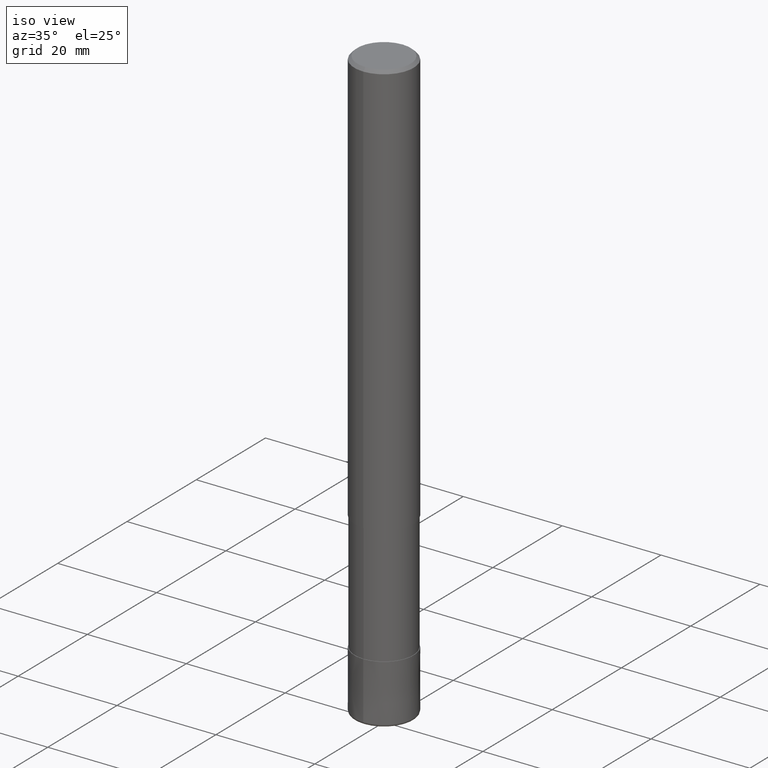
[diagram: clean part render]
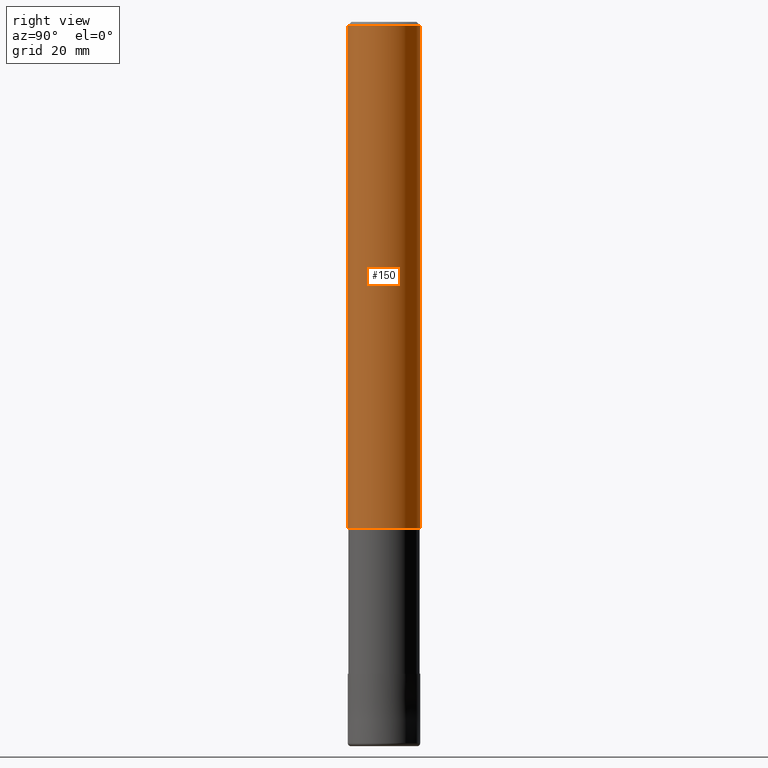
[diagram: tour spotlight — one face highlighted and labeled with its STEP entity id]
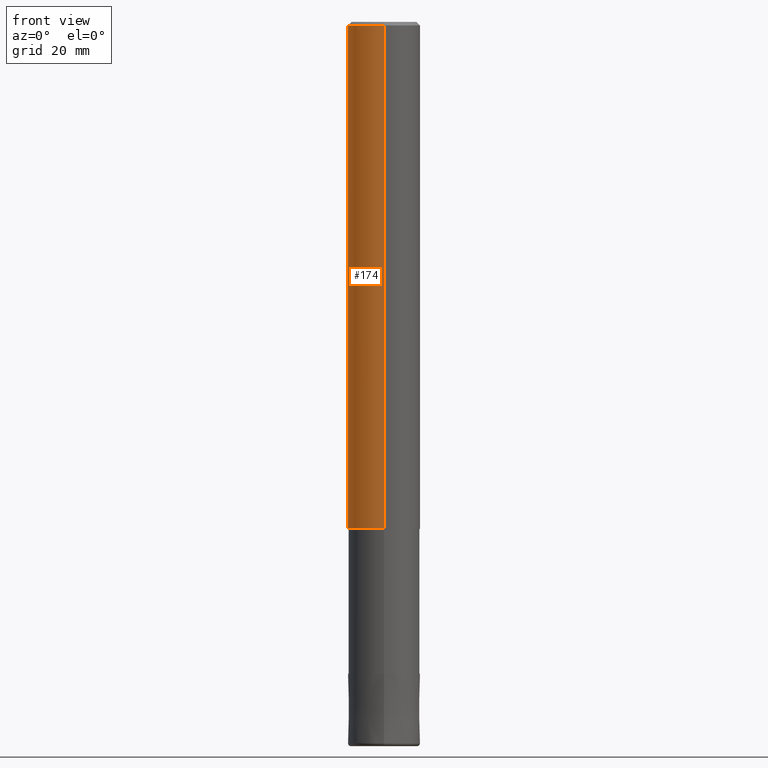
[diagram: tour spotlight — one face highlighted and labeled with its STEP entity id]
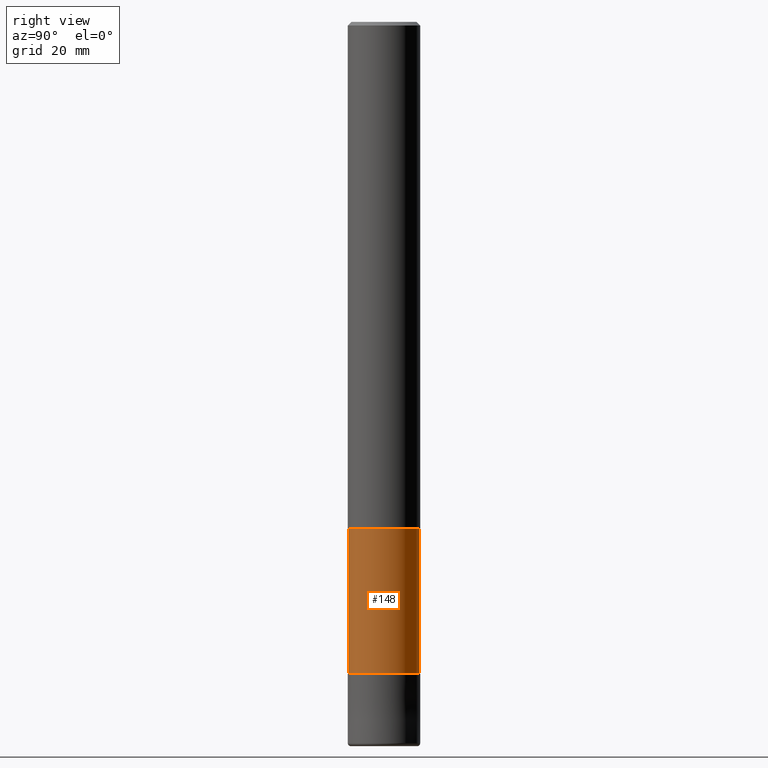
[diagram: tour spotlight — one face highlighted and labeled with its STEP entity id]
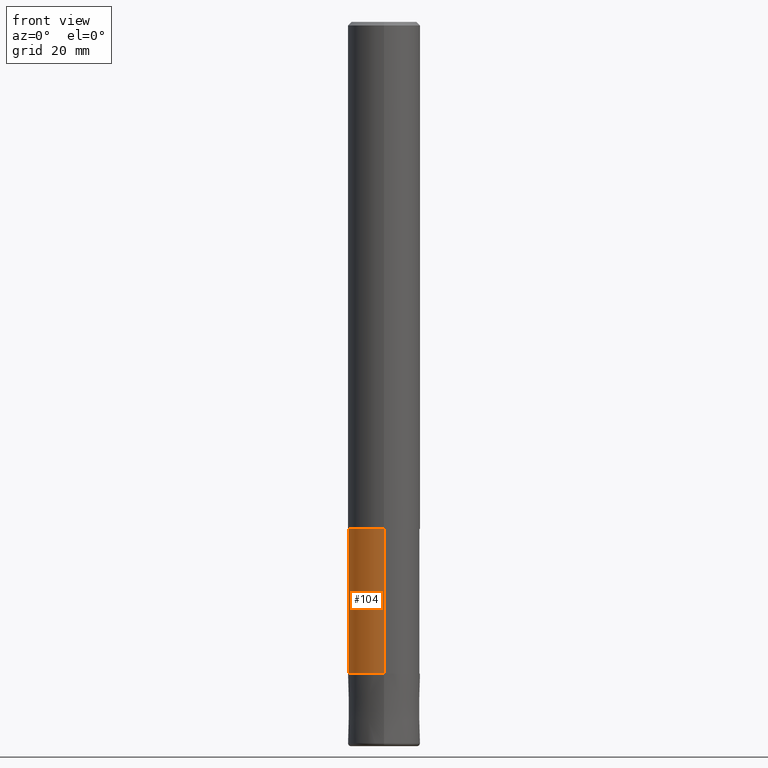
[diagram: tour spotlight — one face highlighted and labeled with its STEP entity id]
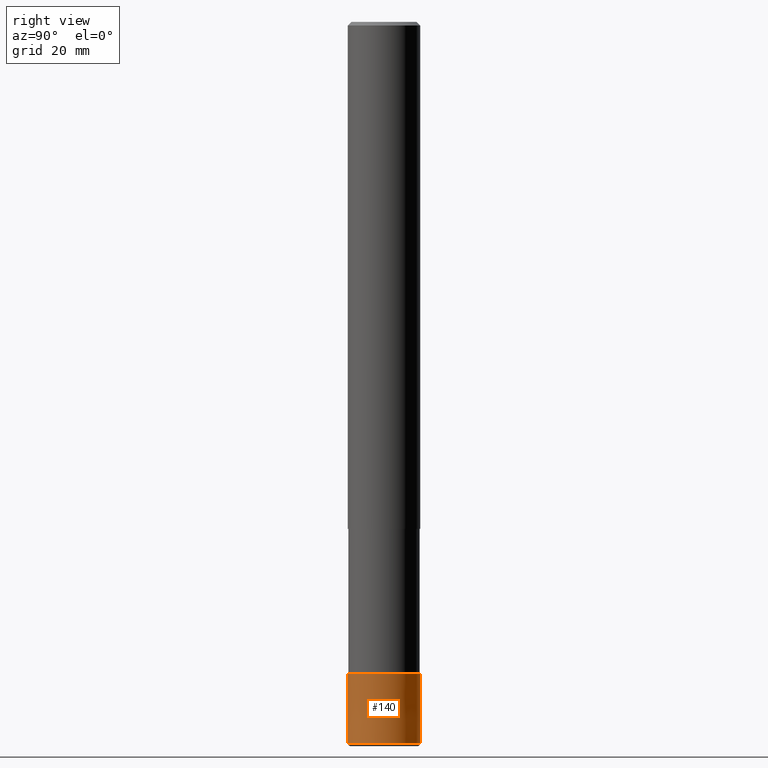
[diagram: tour spotlight — one face highlighted and labeled with its STEP entity id]
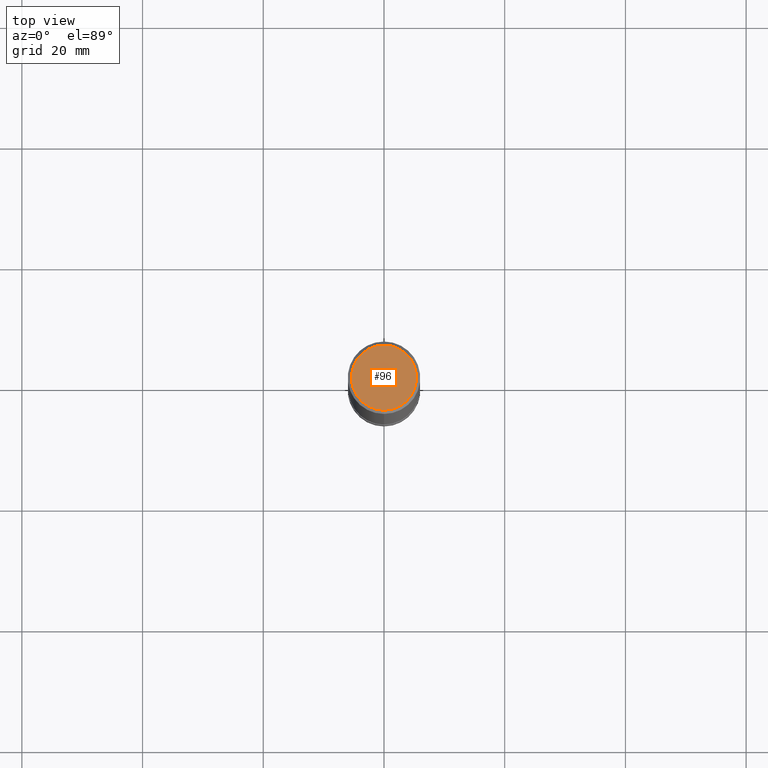
[diagram: tour spotlight — one face highlighted and labeled with its STEP entity id]
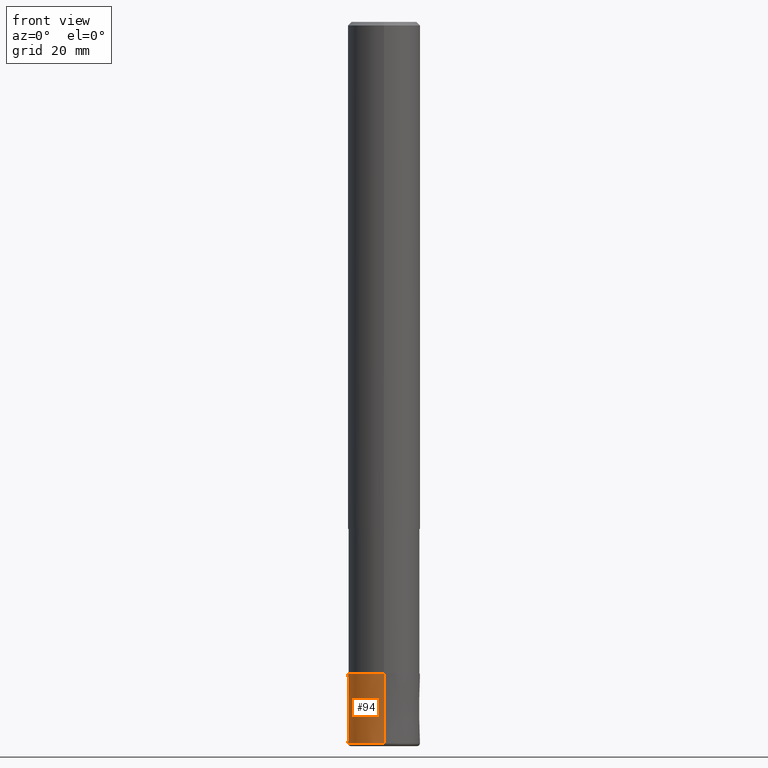
[diagram: tour spotlight — one face highlighted and labeled with its STEP entity id]
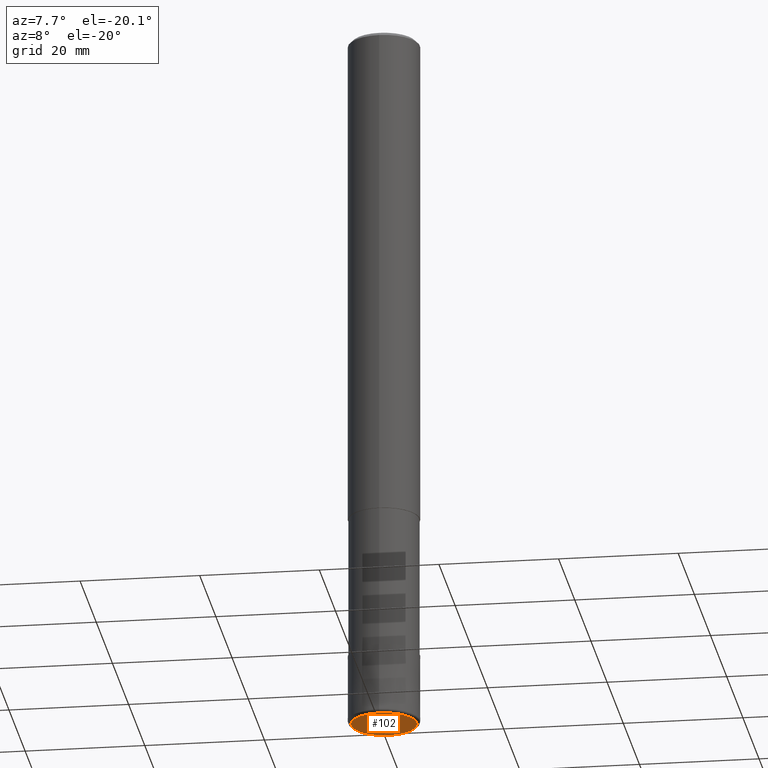
[diagram: tour spotlight — one face highlighted and labeled with its STEP entity id]
A machine part: a face-by-face anatomy tour. The part has 15 B-rep faces; the first image is the clean iso view, then the 8 largest visible faces are spotlighted one at a time (largest first), each with its STEP entity span.

Face 1 — right view, entity #150. In plain terms, the highlighted cylindrical surface (edge-blend (fillet) strip) has radius 6 mm, axis along (-0, -0, 1).
Definition (entity closure, byte-faithful):
#132=EDGE_CURVE('',#168,#202,#279,.T.);
#134=EDGE_CURVE('',#200,#204,#281,.T.);
#150=ADVANCED_FACE('',(#300),#301,.T.);
#156=EDGE_CURVE('',#168,#200,#307,.T.);
#158=EDGE_CURVE('',#204,#202,#309,.T.);
#168=VERTEX_POINT('',#319);
#200=VERTEX_POINT('',#353);
#202=VERTEX_POINT('',#355);
#204=VERTEX_POINT('',#357);
#279=CIRCLE('',#429,6.0);
#281=CIRCLE('',#432,6.0);
#300=FACE_OUTER_BOUND('',#454,.T.);
#301=CYLINDRICAL_SURFACE('',#455,6.0);
#307=LINE('',#464,#465);
#309=LINE('',#468,#469);
#319=CARTESIAN_POINT('',(0.0,6.0,-0.599999999999994));
#353=CARTESIAN_POINT('',(0.0,6.0,-84.0));
#355=CARTESIAN_POINT('',(7.34763812293426E-016,-6.0,-0.599999999999994));
#357=CARTESIAN_POINT('',(7.34763812293426E-016,-6.0,-84.0));
#429=AXIS2_PLACEMENT_3D('',#621,#622,#623);
#432=AXIS2_PLACEMENT_3D('',#624,#625,#626);
#454=EDGE_LOOP('',(#659,#660,#661,#662));
#455=AXIS2_PLACEMENT_3D('',#663,#664,#665);
#464=CARTESIAN_POINT('',(-7.34763812293426E-016,6.0,-42.3));
#465=VECTOR('',#672,1.0);
#468=CARTESIAN_POINT('',(7.34763812293426E-016,-6.0,-42.3));
#469=VECTOR('',#673,1.0);
#621=CARTESIAN_POINT('',(0.0,0.0,-0.599999999999994));
#622=DIRECTION('',(0.0,0.0,-1.0));
#623=DIRECTION('',(0.0,1.0,0.0));
#624=CARTESIAN_POINT('',(0.0,0.0,-84.0));
#625=DIRECTION('',(0.0,0.0,-1.0));
#626=DIRECTION('',(0.0,1.0,0.0));
#659=ORIENTED_EDGE('',*,*,#156,.F.);
#660=ORIENTED_EDGE('',*,*,#132,.T.);
#661=ORIENTED_EDGE('',*,*,#158,.F.);
#662=ORIENTED_EDGE('',*,*,#134,.F.);
#663=CARTESIAN_POINT('',(0.0,0.0,-42.3));
#664=DIRECTION('',(-0.0,-0.0,1.0));
#665=DIRECTION('',(0.0,1.0,0.0));
#672=DIRECTION('',(0.0,0.0,-1.0));
#673=DIRECTION('',(-0.0,-0.0,1.0));

Face 2 — front view, entity #174. In plain terms, the highlighted cylindrical surface (edge-blend (fillet) strip) has radius 6 mm, axis along (-0, -0, 1).
Definition (entity closure, byte-faithful):
#136=EDGE_CURVE('',#204,#200,#283,.T.);
#138=EDGE_CURVE('',#202,#168,#285,.T.);
#156=EDGE_CURVE('',#168,#200,#307,.T.);
#158=EDGE_CURVE('',#204,#202,#309,.T.);
#168=VERTEX_POINT('',#319);
#174=ADVANCED_FACE('',(#325),#326,.T.);
#200=VERTEX_POINT('',#353);
#202=VERTEX_POINT('',#355);
#204=VERTEX_POINT('',#357);
#283=CIRCLE('',#435,6.0);
#285=CIRCLE('',#438,6.0);
#307=LINE('',#464,#465);
#309=LINE('',#468,#469);
#319=CARTESIAN_POINT('',(0.0,6.0,-0.599999999999994));
#325=FACE_OUTER_BOUND('',#490,.T.);
#326=CYLINDRICAL_SURFACE('',#491,6.0);
#353=CARTESIAN_POINT('',(0.0,6.0,-84.0));
#355=CARTESIAN_POINT('',(7.34763812293426E-016,-6.0,-0.599999999999994));
#357=CARTESIAN_POINT('',(7.34763812293426E-016,-6.0,-84.0));
#435=AXIS2_PLACEMENT_3D('',#627,#628,#629);
#438=AXIS2_PLACEMENT_3D('',#630,#631,#632);
#464=CARTESIAN_POINT('',(-7.34763812293426E-016,6.0,-42.3));
#465=VECTOR('',#672,1.0);
#468=CARTESIAN_POINT('',(7.34763812293426E-016,-6.0,-42.3));
#469=VECTOR('',#673,1.0);
#490=EDGE_LOOP('',(#685,#686,#687,#688));
#491=AXIS2_PLACEMENT_3D('',#689,#690,#691);
#627=CARTESIAN_POINT('',(0.0,0.0,-84.0));
#628=DIRECTION('',(0.0,0.0,-1.0));
#629=DIRECTION('',(0.0,1.0,0.0));
#630=CARTESIAN_POINT('',(0.0,0.0,-0.599999999999994));
#631=DIRECTION('',(0.0,0.0,-1.0));
#632=DIRECTION('',(0.0,1.0,0.0));
#672=DIRECTION('',(0.0,0.0,-1.0));
#673=DIRECTION('',(-0.0,-0.0,1.0));
#685=ORIENTED_EDGE('',*,*,#156,.T.);
#686=ORIENTED_EDGE('',*,*,#136,.F.);
#687=ORIENTED_EDGE('',*,*,#158,.T.);
#688=ORIENTED_EDGE('',*,*,#138,.T.);
#689=CARTESIAN_POINT('',(0.0,0.0,-42.3));
#690=DIRECTION('',(-0.0,-0.0,1.0));
#691=DIRECTION('',(0.0,1.0,0.0));

Face 3 — right view, entity #148. In plain terms, the highlighted cylindrical surface (edge-blend (fillet) strip) has radius 5.91 mm, axis along (-0, -0, 1).
Definition (entity closure, byte-faithful):
#92=VERTEX_POINT('',#229);
#148=ADVANCED_FACE('',(#297),#298,.T.);
#164=EDGE_CURVE('',#206,#182,#315,.T.);
#172=VERTEX_POINT('',#323);
#176=EDGE_CURVE('',#172,#92,#328,.T.);
#180=EDGE_CURVE('',#206,#172,#332,.T.);
#182=VERTEX_POINT('',#334);
#206=VERTEX_POINT('',#359);
#208=EDGE_CURVE('',#92,#182,#361,.T.);
#229=CARTESIAN_POINT('',(7.23736232077256E-016,-5.90995,-108.0));
#297=FACE_OUTER_BOUND('',#451,.T.);
#298=CYLINDRICAL_SURFACE('',#452,5.90995);
#315=CIRCLE('',#478,5.90995);
#323=CARTESIAN_POINT('',(0.0,5.90995,-108.0));
#328=CIRCLE('',#494,5.90995);
#332=LINE('',#501,#502);
#334=CARTESIAN_POINT('',(7.23736232077256E-016,-5.90995,-84.0));
#359=CARTESIAN_POINT('',(0.0,5.90995,-84.0));
#361=LINE('',#537,#538);
#451=EDGE_LOOP('',(#651,#652,#653,#654));
#452=AXIS2_PLACEMENT_3D('',#655,#656,#657);
#478=AXIS2_PLACEMENT_3D('',#675,#676,#677);
#494=AXIS2_PLACEMENT_3D('',#692,#693,#694);
#501=CARTESIAN_POINT('',(-7.23736232077256E-016,5.90995,-96.0));
#502=VECTOR('',#696,1.0);
#537=CARTESIAN_POINT('',(7.23736232077256E-016,-5.90995,-96.0));
#538=VECTOR('',#715,1.0);
#651=ORIENTED_EDGE('',*,*,#180,.F.);
#652=ORIENTED_EDGE('',*,*,#164,.T.);
#653=ORIENTED_EDGE('',*,*,#208,.F.);
#654=ORIENTED_EDGE('',*,*,#176,.F.);
#655=CARTESIAN_POINT('',(0.0,0.0,-96.0));
#656=DIRECTION('',(-0.0,-0.0,1.0));
#657=DIRECTION('',(0.0,1.0,0.0));
#675=CARTESIAN_POINT('',(0.0,0.0,-84.0));
#676=DIRECTION('',(0.0,0.0,-1.0));
#677=DIRECTION('',(0.0,1.0,0.0));
#692=CARTESIAN_POINT('',(0.0,0.0,-108.0));
#693=DIRECTION('',(0.0,0.0,-1.0));
#694=DIRECTION('',(0.0,1.0,0.0));
#696=DIRECTION('',(0.0,0.0,-1.0));
#715=DIRECTION('',(-0.0,-0.0,1.0));

Face 4 — front view, entity #104. In plain terms, the highlighted cylindrical surface (edge-blend (fillet) strip) has radius 5.91 mm, axis along (-0, -0, 1).
Definition (entity closure, byte-faithful):
#92=VERTEX_POINT('',#229);
#104=ADVANCED_FACE('',(#247),#248,.T.);
#152=EDGE_CURVE('',#182,#206,#303,.T.);
#166=EDGE_CURVE('',#92,#172,#317,.T.);
#172=VERTEX_POINT('',#323);
#180=EDGE_CURVE('',#206,#172,#332,.T.);
#182=VERTEX_POINT('',#334);
#206=VERTEX_POINT('',#359);
#208=EDGE_CURVE('',#92,#182,#361,.T.);
#229=CARTESIAN_POINT('',(7.23736232077256E-016,-5.90995,-108.0));
#247=FACE_OUTER_BOUND('',#392,.T.);
#248=CYLINDRICAL_SURFACE('',#393,5.90995);
#303=CIRCLE('',#458,5.90995);
#317=CIRCLE('',#481,5.90995);
#323=CARTESIAN_POINT('',(0.0,5.90995,-108.0));
#332=LINE('',#501,#502);
#334=CARTESIAN_POINT('',(7.23736232077256E-016,-5.90995,-84.0));
#359=CARTESIAN_POINT('',(0.0,5.90995,-84.0));
#361=LINE('',#537,#538);
#392=EDGE_LOOP('',(#577,#578,#579,#580));
#393=AXIS2_PLACEMENT_3D('',#581,#582,#583);
#458=AXIS2_PLACEMENT_3D('',#666,#667,#668);
#481=AXIS2_PLACEMENT_3D('',#678,#679,#680);
#501=CARTESIAN_POINT('',(-7.23736232077256E-016,5.90995,-96.0));
#502=VECTOR('',#696,1.0);
#537=CARTESIAN_POINT('',(7.23736232077256E-016,-5.90995,-96.0));
#538=VECTOR('',#715,1.0);
#577=ORIENTED_EDGE('',*,*,#180,.T.);
#578=ORIENTED_EDGE('',*,*,#166,.F.);
#579=ORIENTED_EDGE('',*,*,#208,.T.);
#580=ORIENTED_EDGE('',*,*,#152,.T.);
#581=CARTESIAN_POINT('',(0.0,0.0,-96.0));
#582=DIRECTION('',(-0.0,-0.0,1.0));
#583=DIRECTION('',(0.0,1.0,0.0));
#666=CARTESIAN_POINT('',(0.0,0.0,-84.0));
#667=DIRECTION('',(0.0,0.0,-1.0));
#668=DIRECTION('',(0.0,1.0,0.0));
#678=CARTESIAN_POINT('',(0.0,0.0,-108.0));
#679=DIRECTION('',(0.0,0.0,-1.0));
#680=DIRECTION('',(0.0,1.0,0.0));
#696=DIRECTION('',(0.0,0.0,-1.0));
#715=DIRECTION('',(-0.0,-0.0,1.0));

Face 5 — right view, entity #140. In plain terms, the highlighted conical surface has half-angle 0 deg.
Definition (entity closure, byte-faithful):
#108=EDGE_CURVE('',#118,#128,#253,.T.);
#118=VERTEX_POINT('',#265);
#120=EDGE_CURVE('',#128,#144,#267,.T.);
#128=VERTEX_POINT('',#275);
#130=EDGE_CURVE('',#192,#144,#277,.T.);
#140=ADVANCED_FACE('',(#287),#288,.T.);
#144=VERTEX_POINT('',#293);
#184=EDGE_CURVE('',#192,#118,#336,.T.);
#192=VERTEX_POINT('',#345);
#253=CIRCLE('',#399,6.0);
#265=CARTESIAN_POINT('',(0.0,6.0,-119.5));
#267=LINE('',#414,#415);
#275=CARTESIAN_POINT('',(7.34763812293426E-016,-6.0,-119.5));
#277=CIRCLE('',#426,5.9999);
#287=FACE_OUTER_BOUND('',#440,.T.);
#288=CONICAL_SURFACE('',#441,5.99995,8.69565217367361E-006);
#293=CARTESIAN_POINT('',(7.34751566229888E-016,-5.9999,-108.0));
#336=LINE('',#507,#508);
#345=CARTESIAN_POINT('',(0.0,5.9999,-108.0));
#399=AXIS2_PLACEMENT_3D('',#592,#593,#594);
#414=CARTESIAN_POINT('',(7.34757689261657E-016,-5.99995,-113.75));
#415=VECTOR('',#613,1.0);
#426=AXIS2_PLACEMENT_3D('',#618,#619,#620);
#440=EDGE_LOOP('',(#634,#635,#636,#637));
#441=AXIS2_PLACEMENT_3D('',#638,#639,#640);
#507=CARTESIAN_POINT('',(-7.34757689261657E-016,5.99995,-113.75));
#508=VECTOR('',#697,1.0);
#592=CARTESIAN_POINT('',(0.0,0.0,-119.5));
#593=DIRECTION('',(0.0,0.0,-1.0));
#594=DIRECTION('',(0.0,1.0,0.0));
#613=DIRECTION('',(-1.06487509023759E-021,8.69565217356402E-006,0.999999999962193));
#618=CARTESIAN_POINT('',(0.0,0.0,-108.0));
#619=DIRECTION('',(0.0,0.0,-1.0));
#620=DIRECTION('',(0.0,1.0,0.0));
#634=ORIENTED_EDGE('',*,*,#184,.F.);
#635=ORIENTED_EDGE('',*,*,#130,.T.);
#636=ORIENTED_EDGE('',*,*,#120,.F.);
#637=ORIENTED_EDGE('',*,*,#108,.F.);
#638=CARTESIAN_POINT('',(0.0,0.0,-113.75));
#639=DIRECTION('',(0.0,-0.0,-1.0));
#640=DIRECTION('',(0.0,1.0,0.0));
#697=DIRECTION('',(-1.06487509023759E-021,8.69565217356402E-006,-0.999999999962193));

Face 6 — top view, entity #96. In plain terms, the highlighted planar face has unit normal (-0, 0, 1).
Definition (entity closure, byte-faithful):
#96=ADVANCED_FACE('',(#234),#235,.T.);
#122=EDGE_CURVE('',#162,#124,#269,.T.);
#124=VERTEX_POINT('',#271);
#162=VERTEX_POINT('',#313);
#194=EDGE_CURVE('',#124,#162,#347,.T.);
#234=FACE_OUTER_BOUND('',#379,.T.);
#235=PLANE('',#380);
#269=CIRCLE('',#418,5.4);
#271=CARTESIAN_POINT('',(6.61287431064084E-016,-5.4,0.0));
#313=CARTESIAN_POINT('',(0.0,5.4,0.0));
#347=CIRCLE('',#521,5.4);
#379=EDGE_LOOP('',(#549,#550));
#380=AXIS2_PLACEMENT_3D('',#551,#552,#553);
#418=AXIS2_PLACEMENT_3D('',#614,#615,#616);
#521=AXIS2_PLACEMENT_3D('',#709,#710,#711);
#549=ORIENTED_EDGE('',*,*,#122,.F.);
#550=ORIENTED_EDGE('',*,*,#194,.F.);
#551=CARTESIAN_POINT('',(0.0,2.7,0.0));
#552=DIRECTION('',(-0.0,0.0,1.0));
#553=DIRECTION('',(0.0,-1.0,0.0));
#614=CARTESIAN_POINT('',(0.0,0.0,0.0));
#615=DIRECTION('',(0.0,0.0,-1.0));
#616=DIRECTION('',(0.0,1.0,0.0));
#709=CARTESIAN_POINT('',(0.0,0.0,0.0));
#710=DIRECTION('',(0.0,0.0,-1.0));
#711=DIRECTION('',(0.0,1.0,0.0));

Face 7 — front view, entity #94. In plain terms, the highlighted conical surface has half-angle 0 deg.
Definition (entity closure, byte-faithful):
#94=ADVANCED_FACE('',(#231),#232,.T.);
#118=VERTEX_POINT('',#265);
#120=EDGE_CURVE('',#128,#144,#267,.T.);
#128=VERTEX_POINT('',#275);
#144=VERTEX_POINT('',#293);
#154=EDGE_CURVE('',#144,#192,#305,.T.);
#184=EDGE_CURVE('',#192,#118,#336,.T.);
#192=VERTEX_POINT('',#345);
#196=EDGE_CURVE('',#128,#118,#349,.T.);
#231=FACE_OUTER_BOUND('',#376,.T.);
#232=CONICAL_SURFACE('',#377,5.99995,8.69565217367361E-006);
#265=CARTESIAN_POINT('',(0.0,6.0,-119.5));
#267=LINE('',#414,#415);
#275=CARTESIAN_POINT('',(7.34763812293426E-016,-6.0,-119.5));
#293=CARTESIAN_POINT('',(7.34751566229888E-016,-5.9999,-108.0));
#305=CIRCLE('',#461,5.9999);
#336=LINE('',#507,#508);
#345=CARTESIAN_POINT('',(0.0,5.9999,-108.0));
#349=CIRCLE('',#524,6.0);
#376=EDGE_LOOP('',(#541,#542,#543,#544));
#377=AXIS2_PLACEMENT_3D('',#545,#546,#547);
#414=CARTESIAN_POINT('',(7.34757689261657E-016,-5.99995,-113.75));
#415=VECTOR('',#613,1.0);
#461=AXIS2_PLACEMENT_3D('',#669,#670,#671);
#507=CARTESIAN_POINT('',(-7.34757689261657E-016,5.99995,-113.75));
#508=VECTOR('',#697,1.0);
#524=AXIS2_PLACEMENT_3D('',#712,#713,#714);
#541=ORIENTED_EDGE('',*,*,#184,.T.);
#542=ORIENTED_EDGE('',*,*,#196,.F.);
#543=ORIENTED_EDGE('',*,*,#120,.T.);
#544=ORIENTED_EDGE('',*,*,#154,.T.);
#545=CARTESIAN_POINT('',(0.0,0.0,-113.75));
#546=DIRECTION('',(0.0,-0.0,-1.0));
#547=DIRECTION('',(0.0,1.0,0.0));
#613=DIRECTION('',(-1.06487509023759E-021,8.69565217356402E-006,0.999999999962193));
#669=CARTESIAN_POINT('',(0.0,0.0,-108.0));
#670=DIRECTION('',(0.0,0.0,-1.0));
#671=DIRECTION('',(0.0,1.0,0.0));
#697=DIRECTION('',(-1.06487509023759E-021,8.69565217356402E-006,-0.999999999962193));
#712=CARTESIAN_POINT('',(0.0,0.0,-119.5));
#713=DIRECTION('',(0.0,0.0,-1.0));
#714=DIRECTION('',(0.0,1.0,0.0));

Face 8 — auxiliary view, entity #102. In plain terms, the highlighted planar face has unit normal (0, 0, -1).
Definition (entity closure, byte-faithful):
#102=ADVANCED_FACE('',(#244),#245,.T.);
#170=EDGE_CURVE('',#186,#198,#321,.T.);
#186=VERTEX_POINT('',#338);
#188=EDGE_CURVE('',#198,#186,#340,.T.);
#198=VERTEX_POINT('',#351);
#244=FACE_OUTER_BOUND('',#389,.T.);
#245=PLANE('',#390);
#321=CIRCLE('',#486,5.5);
#338=CARTESIAN_POINT('',(6.73533494602307E-016,-5.5,-120.0));
#340=CIRCLE('',#513,5.5);
#351=CARTESIAN_POINT('',(0.0,5.5,-120.0));
#389=EDGE_LOOP('',(#571,#572));
#390=AXIS2_PLACEMENT_3D('',#573,#574,#575);
#486=AXIS2_PLACEMENT_3D('',#681,#682,#683);
#513=AXIS2_PLACEMENT_3D('',#698,#699,#700);
#571=ORIENTED_EDGE('',*,*,#188,.T.);
#572=ORIENTED_EDGE('',*,*,#170,.T.);
#573=CARTESIAN_POINT('',(0.0,2.75,-120.0));
#574=DIRECTION('',(0.0,0.0,-1.0));
#575=DIRECTION('',(0.0,1.0,0.0));
#681=CARTESIAN_POINT('',(0.0,0.0,-120.0));
#682=DIRECTION('',(0.0,0.0,-1.0));
#683=DIRECTION('',(0.0,1.0,0.0));
#698=CARTESIAN_POINT('',(0.0,0.0,-120.0));
#699=DIRECTION('',(0.0,0.0,-1.0));
#700=DIRECTION('',(0.0,1.0,0.0));